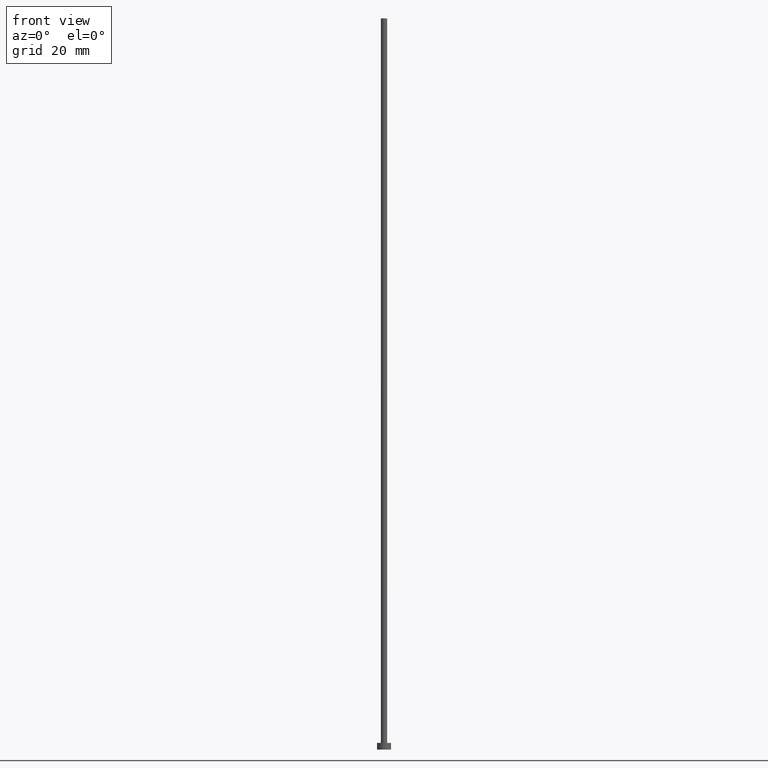
[diagram: clean part render]
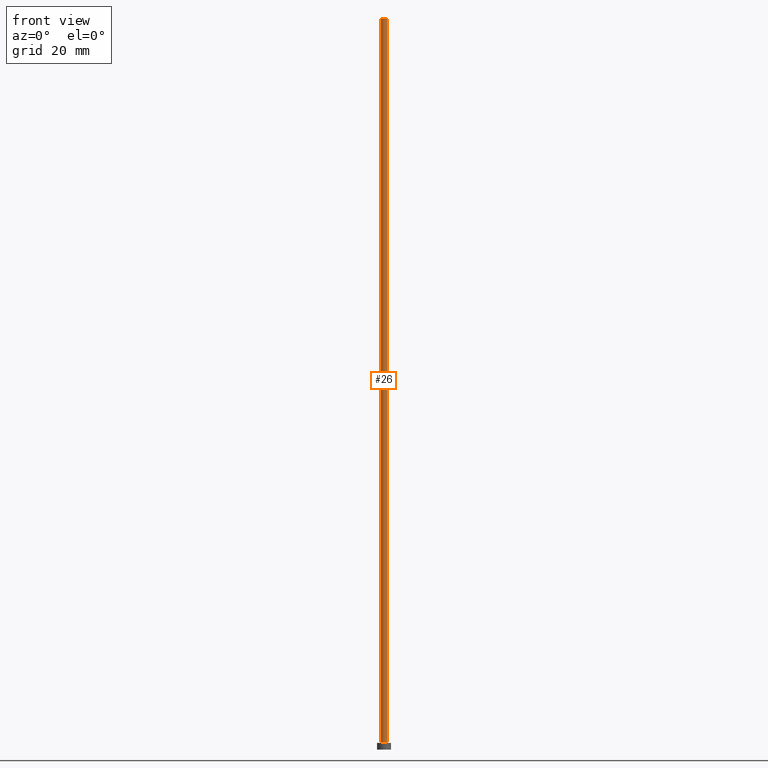
[diagram: same view with one face highlighted and labeled with its STEP entity id]
A machine part, front view. The second image highlights one B-rep face of the part: STEP entity #26.
In plain terms, the highlighted cylindrical surface (edge-blend (fillet) strip) has radius 0.55 mm, axis along (-0, -0, -1).
Its self-contained STEP definition (entity closure, byte-faithful):
#12 = CARTESIAN_POINT ( 'NONE',  ( -0.5500000000000000444, 0.000000000000000000, 130.0000000000000000 ) ) ;
#14 = EDGE_CURVE ( 'NONE', #47, #29, #238, .T. ) ;
#15 = AXIS2_PLACEMENT_3D ( 'NONE', #155, #170, #226 ) ;
#16 = CYLINDRICAL_SURFACE ( 'NONE', #31, 0.5500000000000000444 ) ;
#22 = LINE ( 'NONE', #57, #95 ) ;
#26 = ADVANCED_FACE ( 'NONE', ( #175 ), #16, .T. ) ;
#29 = VERTEX_POINT ( 'NONE', #112 ) ;
#31 = AXIS2_PLACEMENT_3D ( 'NONE', #229, #171, #36 ) ;
#36 = DIRECTION ( 'NONE',  ( -1.000000000000000000, 0.000000000000000000, 0.000000000000000000 ) ) ;
#41 = ORIENTED_EDGE ( 'NONE', *, *, #241, .T. ) ;
#46 = VERTEX_POINT ( 'NONE', #248 ) ;
#47 = VERTEX_POINT ( 'NONE', #12 ) ;
#48 = ORIENTED_EDGE ( 'NONE', *, *, #135, .F. ) ;
#57 = CARTESIAN_POINT ( 'NONE',  ( -0.5500000000000000444, 0.000000000000000000, 130.0000000000000000 ) ) ;
#73 = CARTESIAN_POINT ( 'NONE',  ( 0.5500000000000000444, 6.735557395310442516E-17, 130.0000000000000000 ) ) ;
#74 = DIRECTION ( 'NONE',  ( -0.000000000000000000, -0.000000000000000000, -1.000000000000000000 ) ) ;
#84 = VECTOR ( 'NONE', #74, 1000.000000000000000 ) ;
#89 = CIRCLE ( 'NONE', #153, 0.5500000000000000444 ) ;
#92 = CARTESIAN_POINT ( 'NONE',  ( 0.000000000000000000, 0.000000000000000000, 1.199999999999999956 ) ) ;
#95 = VECTOR ( 'NONE', #235, 1000.000000000000000 ) ;
#104 = ORIENTED_EDGE ( 'NONE', *, *, #14, .F. ) ;
#107 = EDGE_LOOP ( 'NONE', ( #48, #104, #41, #122 ) ) ;
#112 = CARTESIAN_POINT ( 'NONE',  ( 0.5500000000000000444, 6.735557395310442516E-17, 130.0000000000000000 ) ) ;
#113 = CARTESIAN_POINT ( 'NONE',  ( 0.5500000000000000444, 6.735557395310442516E-17, 1.199999999999999956 ) ) ;
#122 = ORIENTED_EDGE ( 'NONE', *, *, #124, .T. ) ;
#124 = EDGE_CURVE ( 'NONE', #46, #204, #89, .T. ) ;
#134 = LINE ( 'NONE', #73, #84 ) ;
#135 = EDGE_CURVE ( 'NONE', #29, #204, #134, .T. ) ;
#153 = AXIS2_PLACEMENT_3D ( 'NONE', #92, #205, #249 ) ;
#155 = CARTESIAN_POINT ( 'NONE',  ( 0.000000000000000000, 0.000000000000000000, 130.0000000000000000 ) ) ;
#170 = DIRECTION ( 'NONE',  ( 0.000000000000000000, 0.000000000000000000, 1.000000000000000000 ) ) ;
#171 = DIRECTION ( 'NONE',  ( -0.000000000000000000, -0.000000000000000000, -1.000000000000000000 ) ) ;
#175 = FACE_OUTER_BOUND ( 'NONE', #107, .T. ) ;
#204 = VERTEX_POINT ( 'NONE', #113 ) ;
#205 = DIRECTION ( 'NONE',  ( 0.000000000000000000, 0.000000000000000000, 1.000000000000000000 ) ) ;
#226 = DIRECTION ( 'NONE',  ( 1.000000000000000000, 0.000000000000000000, 0.000000000000000000 ) ) ;
#229 = CARTESIAN_POINT ( 'NONE',  ( 0.000000000000000000, 0.000000000000000000, 130.0000000000000000 ) ) ;
#235 = DIRECTION ( 'NONE',  ( -0.000000000000000000, -0.000000000000000000, -1.000000000000000000 ) ) ;
#238 = CIRCLE ( 'NONE', #15, 0.5500000000000000444 ) ;
#241 = EDGE_CURVE ( 'NONE', #47, #46, #22, .T. ) ;
#248 = CARTESIAN_POINT ( 'NONE',  ( -0.5500000000000000444, 0.000000000000000000, 1.199999999999999956 ) ) ;
#249 = DIRECTION ( 'NONE',  ( 1.000000000000000000, 0.000000000000000000, 0.000000000000000000 ) ) ;